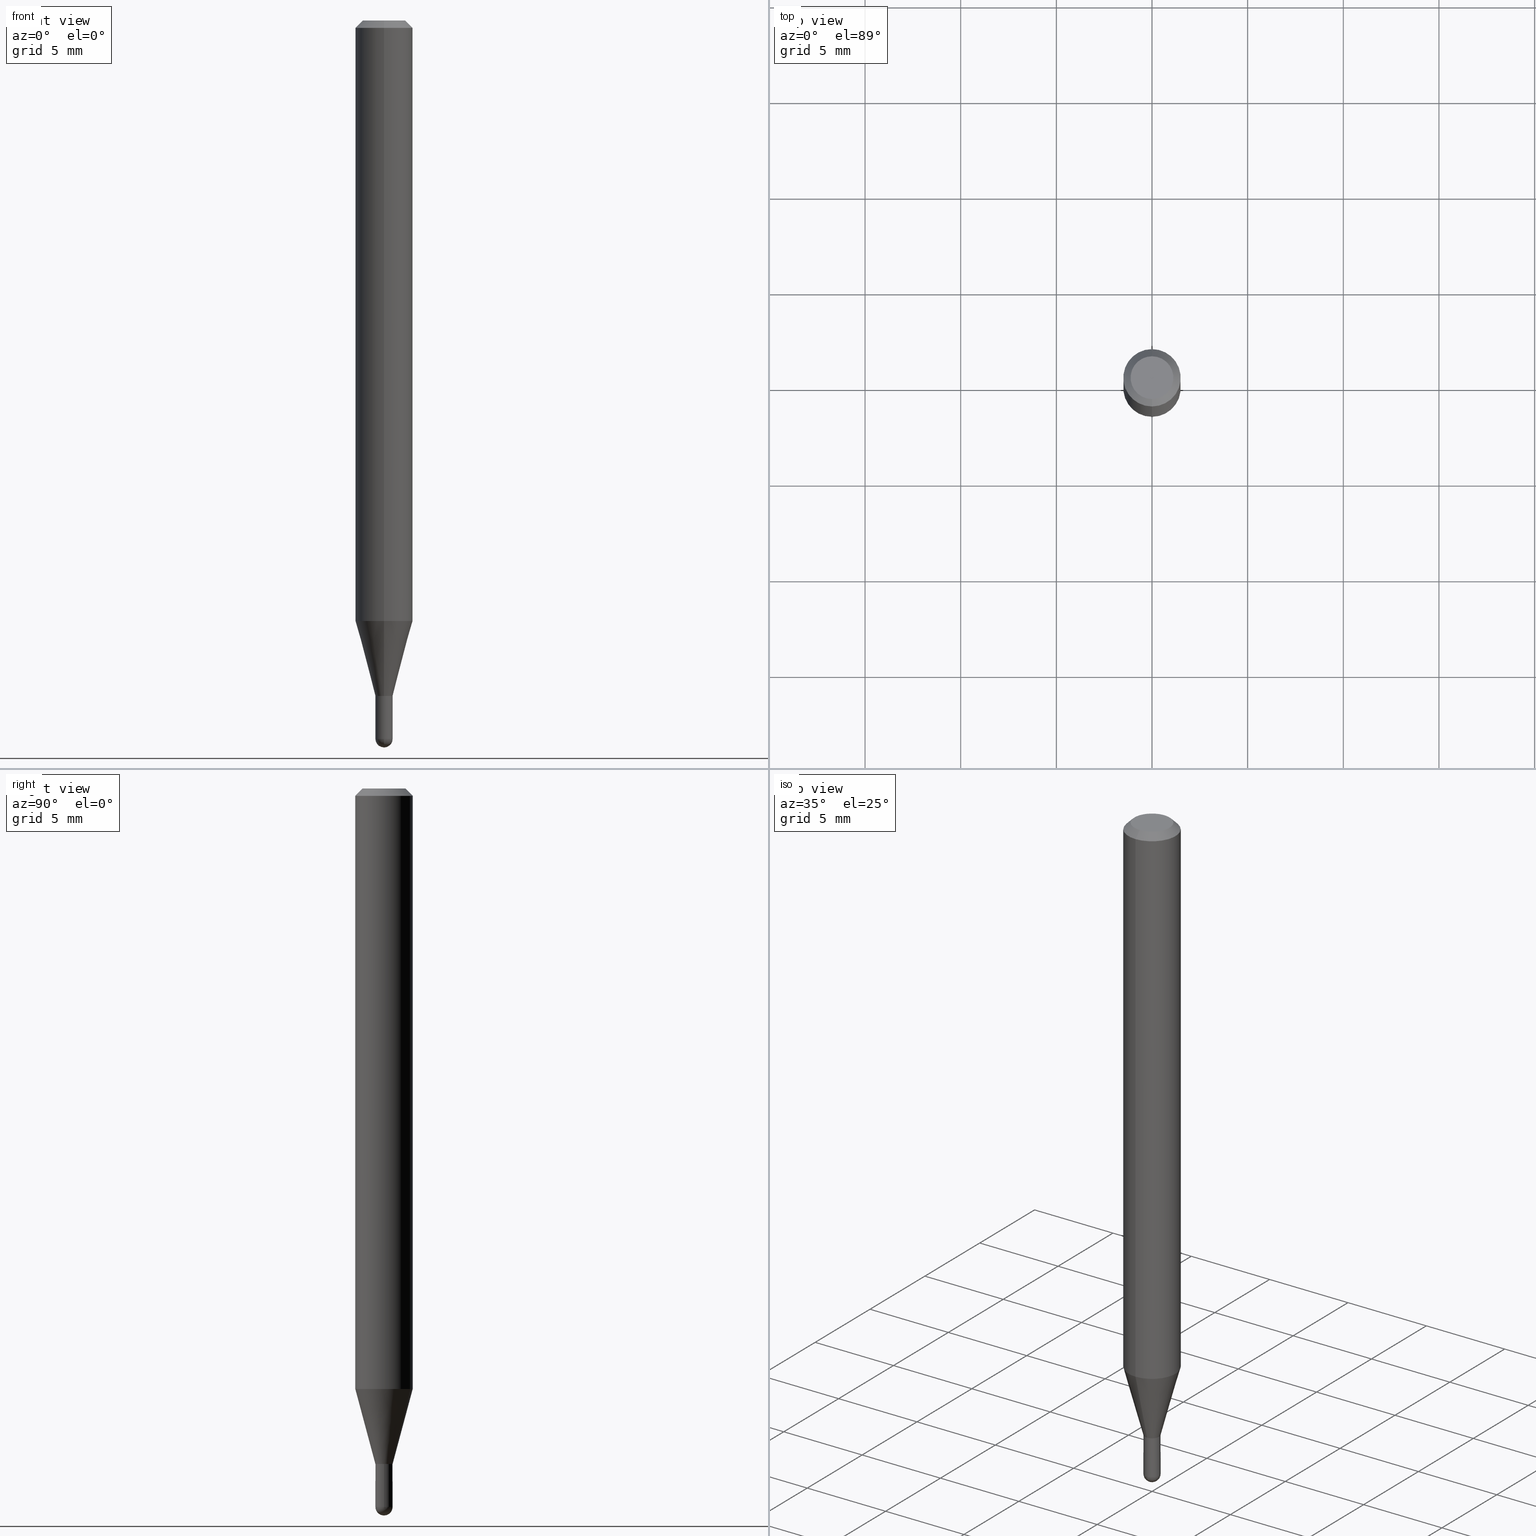
[diagram: canonical four-view strip — front | top / right | iso, engineering-drawing reading convention]
A machine part, canonical four-view strip (front | top / right | iso — engineering-drawing reading convention). The complete STEP part file that produces these views, byte-faithful:
ISO-10303-21;
HEADER;
FILE_DESCRIPTION (( 'STEP AP203' ),
    '1' );
FILE_NAME ('05016.STEP',
    '2024-03-08T20:47:58',
    ( '' ),
    ( '' ),
    'SwSTEP 2.0',
    'SolidWorks 2023',
    '' );
FILE_SCHEMA (( 'CONFIG_CONTROL_DESIGN' ));
ENDSEC;

DATA;
#1 = AXIS2_PLACEMENT_3D ( 'NONE', #418, #31, #149 ) ;
#2 = EDGE_LOOP ( 'NONE', ( #88, #100, #445, #374, #262 ) ) ;
#3 = VECTOR ( 'NONE', #470, 39.37007874015748854 ) ;
#4 = APPROVAL ( #497, 'UNSPECIFIED' ) ;
#5 = ORIENTED_EDGE ( 'NONE', *, *, #276, .F. ) ;
#6 = EDGE_CURVE ( 'NONE', #43, #257, #79, .T. ) ;
#7 = ORIENTED_EDGE ( 'NONE', *, *, #500, .T. ) ;
#8 = DIRECTION ( 'NONE',  ( -6.982962677686265922E-15, -1.000000000000000000, 3.491520277055182964E-15 ) ) ;
#9 = AXIS2_PLACEMENT_3D ( 'NONE', #491, #163, #333 ) ;
#10 = ORGANIZATION ( 'UNSPECIFIED', 'UNSPECIFIED', '' ) ;
#11 = EDGE_LOOP ( 'NONE', ( #175, #323, #90, #370 ) ) ;
#12 = CYLINDRICAL_SURFACE ( 'NONE', #437, 0.05904999999999999832 ) ;
#13 = ORIENTED_EDGE ( 'NONE', *, *, #394, .F. ) ;
#14 = CARTESIAN_POINT ( 'NONE',  ( 3.075995059520799729E-16, 0.04404999999999999888, -1.940516892611363191E-16 ) ) ;
#15 = EDGE_LOOP ( 'NONE', ( #397, #125, #244, #48 ) ) ;
#16 = DIRECTION ( 'NONE',  ( -6.982962677686265922E-15, -1.000000000000000000, 3.491520277055182964E-15 ) ) ;
#17 = EDGE_CURVE ( 'NONE', #511, #47, #126, .T. ) ;
#18 = CIRCLE ( 'NONE', #111, 0.01769999999999996229 ) ;
#19 = CONICAL_SURFACE ( 'NONE', #45, 0.05904999999999999832, 0.7853981633974483900 ) ;
#20 = APPLICATION_PROTOCOL_DEFINITION ( 'international standard', 'config_control_design', 1994, #435 ) ;
#21 = EDGE_LOOP ( 'NONE', ( #332, #220 ) ) ;
#22 = CARTESIAN_POINT ( 'NONE',  ( 3.613867438732258516E-29, -5.163973636180197751E-15, -1.478399999999999936 ) ) ;
#23 = COORDINATED_UNIVERSAL_TIME_OFFSET ( 5, 0, .BEHIND. ) ;
#24 = DIRECTION ( 'NONE',  ( 6.982962677686265922E-15, 1.000000000000000000, -3.505890868245046092E-15 ) ) ;
#25 = FACE_OUTER_BOUND ( 'NONE', #395, .T. ) ;
#26 = DATE_AND_TIME ( #227, #81 ) ;
#27 = CARTESIAN_POINT ( 'NONE',  ( 3.399408390091603285E-29, -4.853562337134410202E-15, -1.390100000000000113 ) ) ;
#28 =( NAMED_UNIT ( * ) PLANE_ANGLE_UNIT ( ) SI_UNIT ( $, .RADIAN. ) );
#29 = AXIS2_PLACEMENT_3D ( 'NONE', #355, #154, #78 ) ;
#30 = PERSON_AND_ORGANIZATION_ROLE ( 'design_owner' ) ;
#31 = DIRECTION ( 'NONE',  ( -2.445468806185136597E-29, 3.491481338843145583E-15, 1.000000000000000000 ) ) ;
#32 = CARTESIAN_POINT ( 'NONE',  ( 3.613867438732258516E-29, -5.163973636180197751E-15, -1.478399999999999936 ) ) ;
#33 = PERSON_AND_ORGANIZATION ( #477, #10 ) ;
#34 = DIRECTION ( 'NONE',  ( -2.445441615776996841E-29, 3.491520277055183358E-15, 1.000000000000000000 ) ) ;
#35 = DIRECTION ( 'NONE',  ( -2.445441615776996841E-29, 3.491520277055183358E-15, 1.000000000000000000 ) ) ;
#36 = EDGE_CURVE ( 'NONE', #482, #59, #238, .T. ) ;
#37 = DIRECTION ( 'NONE',  ( 1.000000000000000000, -6.982962677686271444E-15, 0.000000000000000000 ) ) ;
#38 = DIRECTION ( 'NONE',  ( 1.839019923739649619E-15, 0.2588190451025318972, 0.9659258262890650926 ) ) ;
#39 = CIRCLE ( 'NONE', #9, 0.01770000000000019821 ) ;
#40 = LINE ( 'NONE', #510, #3 ) ;
#41 = CC_DESIGN_APPROVAL ( #352, ( #177 ) ) ;
#42 = EDGE_CURVE ( 'NONE', #511, #205, #340, .T. ) ;
#43 = VERTEX_POINT ( 'NONE', #151 ) ;
#44 = CIRCLE ( 'NONE', #110, 0.01769999999999965004 ) ;
#45 = AXIS2_PLACEMENT_3D ( 'NONE', #253, #58, #371 ) ;
#46 = APPROVAL_PERSON_ORGANIZATION ( #309, #4, #382 ) ;
#47 = VERTEX_POINT ( 'NONE', #422 ) ;
#48 = ORIENTED_EDGE ( 'NONE', *, *, #190, .F. ) ;
#49 = CARTESIAN_POINT ( 'NONE',  ( -4.123439461173739834E-16, -0.05904999999999999832, 2.061742723601085597E-16 ) ) ;
#50 = ORIENTED_EDGE ( 'NONE', *, *, #357, .T. ) ;
#51 = LINE ( 'NONE', #131, #285 ) ;
#52 = AXIS2_PLACEMENT_3D ( 'NONE', #348, #143, #431 ) ;
#53 = PRODUCT_DEFINITION_FORMATION_WITH_SPECIFIED_SOURCE ( 'ANY', '', #474, .NOT_KNOWN. ) ;
#54 = EDGE_LOOP ( 'NONE', ( #360, #119, #167, #95 ) ) ;
#55 = FACE_OUTER_BOUND ( 'NONE', #21, .T. ) ;
#56 = ORIENTED_EDGE ( 'NONE', *, *, #291, .T. ) ;
#57 = EDGE_CURVE ( 'NONE', #59, #139, #192, .T. ) ;
#58 = DIRECTION ( 'NONE',  ( 2.445441615776996841E-29, -3.491520277055183358E-15, -1.000000000000000000 ) ) ;
#59 = VERTEX_POINT ( 'NONE', #430 ) ;
#60 = CARTESIAN_POINT ( 'NONE',  ( 1.257660642295371691E-16, 0.01769999999999992413, -6.179990890387647040E-17 ) ) ;
#61 = AXIS2_PLACEMENT_3D ( 'NONE', #468, #226, #182 ) ;
#62 = COORDINATED_UNIVERSAL_TIME_OFFSET ( 5, 0, .BEHIND. ) ;
#63 = CARTESIAN_POINT ( 'NONE',  ( 3.399408390091603285E-29, -4.853562337134410202E-15, -1.390100000000000113 ) ) ;
#64 = DIRECTION ( 'NONE',  ( -1.000000000000000000, 6.982962677686265922E-15, -4.883557194083112340E-29 ) ) ;
#65 = DATE_AND_TIME ( #349, #241 ) ;
#66 = DIRECTION ( 'NONE',  ( 1.000000000000000000, -6.982962677686265922E-15, 4.876176775795935232E-29 ) ) ;
#67 = CARTESIAN_POINT ( 'NONE',  ( 3.615381083064105737E-29, -5.161806011345705278E-15, -1.478399999999999714 ) ) ;
#68 = APPROVAL_DATE_TIME ( #504, #416 ) ;
#69 = CARTESIAN_POINT ( 'NONE',  ( -1.201069580561697893E-16, -0.01720000000000485377, -1.389799999999999702 ) ) ;
#70 = AXIS2_PLACEMENT_3D ( 'NONE', #14, #290, #409 ) ;
#71 = CALENDAR_DATE ( 2024, 8, 3 ) ;
#72 = DIRECTION ( 'NONE',  ( -6.982962677686266711E-15, -1.000000000000000000, 0.000000000000000000 ) ) ;
#73 = LINE ( 'NONE', #495, #80 ) ;
#74 = PERSON_AND_ORGANIZATION_ROLE ( 'creator' ) ;
#75 = CARTESIAN_POINT ( 'NONE',  ( 1.968591312333160801E-45, -2.810689259519290324E-31, -8.050044211371100682E-17 ) ) ;
#76 = DIRECTION ( 'NONE',  ( -6.982962677686265922E-15, -1.000000000000000000, 0.000000000000000000 ) ) ;
#77 = ADVANCED_FACE ( 'NONE', ( #493 ), #261, .T. ) ;
#78 = DIRECTION ( 'NONE',  ( -1.000000000000000000, 6.982962677686265922E-15, -4.876176775795935793E-29 ) ) ;
#79 = CIRCLE ( 'NONE', #299, 0.04404999999999999888 ) ;
#80 = VECTOR ( 'NONE', #38, 39.37007874015748854 ) ;
#81 = LOCAL_TIME ( 15, 47, 58.00000000000000000, #62 ) ;
#82 = EDGE_CURVE ( 'NONE', #289, #407, #324, .T. ) ;
#83 = ORIENTED_EDGE ( 'NONE', *, *, #239, .T. ) ;
#84 = ORIENTED_EDGE ( 'NONE', *, *, #132, .T. ) ;
#85 = EDGE_CURVE ( 'NONE', #407, #254, #141, .T. ) ;
#86 = ORIENTED_EDGE ( 'NONE', *, *, #57, .T. ) ;
#87 = CC_DESIGN_PERSON_AND_ORGANIZATION_ASSIGNMENT ( #225, #178, ( #373 ) ) ;
#88 = ORIENTED_EDGE ( 'NONE', *, *, #190, .T. ) ;
#89 = CARTESIAN_POINT ( 'NONE',  ( 2.726707748479693555E-16, 0.01769999999999479628, -1.390100000000000113 ) ) ;
#90 = ORIENTED_EDGE ( 'NONE', *, *, #447, .T. ) ;
#91 = CARTESIAN_POINT ( 'NONE',  ( 0.000000000000000000, 0.000000000000000000, 0.000000000000000000 ) ) ;
#92 = AXIS2_PLACEMENT_3D ( 'NONE', #224, #377, #24 ) ;
#93 = CC_DESIGN_SECURITY_CLASSIFICATION ( #373, ( #53 ) ) ;
#94 = EDGE_CURVE ( 'NONE', #257, #43, #383, .T. ) ;
#95 = ORIENTED_EDGE ( 'NONE', *, *, #291, .F. ) ;
#96 = FACE_OUTER_BOUND ( 'NONE', #287, .T. ) ;
#97 = DIRECTION ( 'NONE',  ( -6.982962677686265133E-15, -1.000000000000000000, 3.491520277055183358E-15 ) ) ;
#98 = CARTESIAN_POINT ( 'NONE',  ( 3.022027104128707959E-29, -4.314749877405350668E-15, -1.235779699107030671 ) ) ;
#99 = DATE_TIME_ROLE ( 'creation_date' ) ;
#100 = ORIENTED_EDGE ( 'NONE', *, *, #494, .T. ) ;
#101 = CARTESIAN_POINT ( 'NONE',  ( 1.239897073901721447E-16, 0.01719999999999514625, -1.389799999999999702 ) ) ;
#102 = AXIS2_PLACEMENT_3D ( 'NONE', #27, #347, #146 ) ;
#103 = COORDINATED_UNIVERSAL_TIME_OFFSET ( 5, 0, .BEHIND. ) ;
#104 = DIRECTION ( 'NONE',  ( -6.982962677686266711E-15, -1.000000000000000000, 0.000000000000000000 ) ) ;
#105 = DIRECTION ( 'NONE',  ( -2.445468806185136597E-29, 3.491481338843145583E-15, 1.000000000000000000 ) ) ;
#106 = CARTESIAN_POINT ( 'NONE',  ( -1.235984393950104545E-16, -0.01770000000000450380, -1.390100000000000113 ) ) ;
#107 = COORDINATED_UNIVERSAL_TIME_OFFSET ( 5, 0, .BEHIND. ) ;
#108 = DIRECTION ( 'NONE',  ( -2.445441615776996841E-29, 3.491520277055183358E-15, 1.000000000000000000 ) ) ;
#109 = CARTESIAN_POINT ( 'NONE',  ( 0.000000000000000000, 0.000000000000000000, 0.000000000000000000 ) ) ;
#110 = AXIS2_PLACEMENT_3D ( 'NONE', #235, #188, #144 ) ;
#111 = AXIS2_PLACEMENT_3D ( 'NONE', #22, #129, #288 ) ;
#112 =( GEOMETRIC_REPRESENTATION_CONTEXT ( 3 ) GLOBAL_UNCERTAINTY_ASSIGNED_CONTEXT ( ( #328 ) ) GLOBAL_UNIT_ASSIGNED_CONTEXT ( ( #378, #28, #318 ) ) REPRESENTATION_CONTEXT ( 'NONE', 'WORKASPACE' ) );
#113 = ADVANCED_FACE ( 'NONE', ( #228 ), #443, .T. ) ;
#114 = APPROVAL_DATE_TIME ( #187, #352 ) ;
#115 = CARTESIAN_POINT ( 'NONE',  ( 3.398674757606869525E-29, -4.852514881051293182E-15, -1.389799999999999702 ) ) ;
#116 = DIRECTION ( 'NONE',  ( -6.982962677686266711E-15, -1.000000000000000000, 0.000000000000000000 ) ) ;
#117 = DIRECTION ( 'NONE',  ( -2.445468806185136877E-29, 3.491481338843145188E-15, 1.000000000000000000 ) ) ;
#118 = CARTESIAN_POINT ( 'NONE',  ( 0.01770000000000000046, -4.976059204119250988E-15, -1.389799999999999924 ) ) ;
#119 = ORIENTED_EDGE ( 'NONE', *, *, #82, .T. ) ;
#120 = EDGE_CURVE ( 'NONE', #205, #297, #230, .T. ) ;
#121 = AXIS2_PLACEMENT_3D ( 'NONE', #249, #405, #135 ) ;
#122 = ORIENTED_EDGE ( 'NONE', *, *, #242, .T. ) ;
#123 = ORIENTED_EDGE ( 'NONE', *, *, #500, .F. ) ;
#124 = EDGE_CURVE ( 'NONE', #321, #414, #44, .T. ) ;
#125 = ORIENTED_EDGE ( 'NONE', *, *, #394, .T. ) ;
#126 = CIRCLE ( 'NONE', #200, 0.01770000000000000046 ) ;
#127 = VECTOR ( 'NONE', #222, 39.37007874015748143 ) ;
#128 = EDGE_LOOP ( 'NONE', ( #450, #207, #123, #473 ) ) ;
#129 = DIRECTION ( 'NONE',  ( 1.000000000000000000, -7.105427357601001070E-15, 4.926315508542082329E-29 ) ) ;
#130 = ORIENTED_EDGE ( 'NONE', *, *, #412, .T. ) ;
#131 = CARTESIAN_POINT ( 'NONE',  ( -4.051124067684085231E-16, -0.05905000000000005383, -0.01499999999999987454 ) ) ;
#132 = EDGE_CURVE ( 'NONE', #414, #321, #170, .T. ) ;
#133 = ORIENTED_EDGE ( 'NONE', *, *, #124, .F. ) ;
#134 = CLOSED_SHELL ( 'NONE', ( #389, #436, #183, #218, #165 ) ) ;
#135 = DIRECTION ( 'NONE',  ( -6.982962677686266711E-15, -1.000000000000000000, 0.000000000000000000 ) ) ;
#136 = AXIS2_PLACEMENT_3D ( 'NONE', #197, #237, #316 ) ;
#137 = ORIENTED_EDGE ( 'NONE', *, *, #308, .F. ) ;
#138 = DIRECTION ( 'NONE',  ( -2.445441615776996841E-29, 3.491520277055183358E-15, 1.000000000000000000 ) ) ;
#139 = VERTEX_POINT ( 'NONE', #454 ) ;
#140 = DIRECTION ( 'NONE',  ( -6.982962677686265922E-15, -1.000000000000000000, 0.000000000000000000 ) ) ;
#141 = LINE ( 'NONE', #69, #210 ) ;
#142 = PRODUCT_RELATED_PRODUCT_CATEGORY ( 'detail', '', ( #474 ) ) ;
#143 = DIRECTION ( 'NONE',  ( -2.445468806185136597E-29, 3.491481338843145583E-15, 1.000000000000000000 ) ) ;
#144 = DIRECTION ( 'NONE',  ( -6.982962677686265133E-15, -1.000000000000000000, 0.000000000000000000 ) ) ;
#145 = LINE ( 'NONE', #415, #172 ) ;
#146 = DIRECTION ( 'NONE',  ( -6.982962677686265133E-15, -1.000000000000000000, 0.000000000000000000 ) ) ;
#147 = DIRECTION ( 'NONE',  ( -2.445441615776996841E-29, 3.491520277055183358E-15, 1.000000000000000000 ) ) ;
#148 = SECURITY_CLASSIFICATION_LEVEL ( 'unclassified' ) ;
#149 = DIRECTION ( 'NONE',  ( 1.000000000000000000, -6.982962677686271444E-15, 0.000000000000000000 ) ) ;
#150 = AXIS2_PLACEMENT_3D ( 'NONE', #67, #229, #461 ) ;
#151 = CARTESIAN_POINT ( 'NONE',  ( 3.599717260347271507E-16, 0.04404999999999999888, -2.343019103179918348E-16 ) ) ;
#152 = ADVANCED_FACE ( 'NONE', ( #350 ), #428, .T. ) ;
#153 = FACE_OUTER_BOUND ( 'NONE', #54, .T. ) ;
#154 = DIRECTION ( 'NONE',  ( 2.438088387897960049E-29, -3.491481338843145188E-15, -1.000000000000000000 ) ) ;
#155 = CC_DESIGN_PERSON_AND_ORGANIZATION_ASSIGNMENT ( #459, #413, ( #53 ) ) ;
#156 = ORIENTED_EDGE ( 'NONE', *, *, #494, .F. ) ;
#157 = AXIS2_PLACEMENT_3D ( 'NONE', #75, #34, #278 ) ;
#158 = CIRCLE ( 'NONE', #444, 0.05904999999999999832 ) ;
#159 = ADVANCED_FACE ( 'NONE', ( #194 ), #160, .T. ) ;
#160 = CONICAL_SURFACE ( 'NONE', #92, 0.05904999999999999832, 0.7853981633974483900 ) ;
#161 = ADVANCED_FACE ( 'NONE', ( #310 ), #456, .F. ) ;
#162 = EDGE_LOOP ( 'NONE', ( #212, #86, #214, #198 ) ) ;
#163 = DIRECTION ( 'NONE',  ( -2.445441615776996841E-29, 3.491520277055183358E-15, 1.000000000000000000 ) ) ;
#164 = ORIENTED_EDGE ( 'NONE', *, *, #204, .T. ) ;
#165 = ADVANCED_FACE ( 'NONE', ( #179 ), #465, .T. ) ;
#166 = CARTESIAN_POINT ( 'NONE',  ( 3.613867438732258516E-29, -5.163973636180197751E-15, -1.478399999999999936 ) ) ;
#167 = ORIENTED_EDGE ( 'NONE', *, *, #85, .T. ) ;
#168 = FACE_OUTER_BOUND ( 'NONE', #11, .T. ) ;
#169 = ORIENTED_EDGE ( 'NONE', *, *, #36, .F. ) ;
#170 = CIRCLE ( 'NONE', #464, 0.01769999999999965004 ) ;
#171 = FACE_OUTER_BOUND ( 'NONE', #2, .T. ) ;
#172 = VECTOR ( 'NONE', #274, 39.37007874015748143 ) ;
#173 = EDGE_CURVE ( 'NONE', #139, #280, #245, .T. ) ;
#174 = MECHANICAL_CONTEXT ( 'NONE', #435, 'mechanical' ) ;
#175 = ORIENTED_EDGE ( 'NONE', *, *, #357, .F. ) ;
#176 = SPHERICAL_SURFACE ( 'NONE', #479, 0.01769999999999996229 ) ;
#177 = PRODUCT_DEFINITION ( 'UNKNOWN', '', #53, #271 ) ;
#178 = PERSON_AND_ORGANIZATION_ROLE ( 'classification_officer' ) ;
#179 = FACE_OUTER_BOUND ( 'NONE', #203, .T. ) ;
#180 = DIRECTION ( 'NONE',  ( -6.982962677686265922E-15, -1.000000000000000000, 3.491520277055182964E-15 ) ) ;
#181 = APPROVAL_STATUS ( 'not_yet_approved' ) ;
#182 = DIRECTION ( 'NONE',  ( -6.982962677686265922E-15, -1.000000000000000000, 3.505890868245046092E-15 ) ) ;
#183 = ADVANCED_FACE ( 'NONE', ( #498 ), #432, .F. ) ;
#184 = VECTOR ( 'NONE', #117, 39.37007874015748143 ) ;
#185 = AXIS2_PLACEMENT_3D ( 'NONE', #32, #388, #76 ) ;
#186 = CC_DESIGN_APPROVAL ( #4, ( #373 ) ) ;
#187 = DATE_AND_TIME ( #425, #283 ) ;
#188 = DIRECTION ( 'NONE',  ( -2.445441615776996841E-29, 3.491520277055183358E-15, 1.000000000000000000 ) ) ;
#189 = DIRECTION ( 'NONE',  ( -2.445468806185136597E-29, 3.491481338843145583E-15, 1.000000000000000000 ) ) ;
#190 = EDGE_CURVE ( 'NONE', #47, #337, #201, .T. ) ;
#191 = APPLICATION_PROTOCOL_DEFINITION ( 'international standard', 'config_control_design', 1994, #265 ) ;
#192 = LINE ( 'NONE', #302, #196 ) ;
#193 = CARTESIAN_POINT ( 'NONE',  ( -0.01770000000000000046, 1.257660642295377361E-16, -8.706515109751182648E-31 ) ) ;
#194 = FACE_OUTER_BOUND ( 'NONE', #471, .T. ) ;
#195 = SPHERICAL_SURFACE ( 'NONE', #185, 0.01769999999999996229 ) ;
#196 = VECTOR ( 'NONE', #275, 39.37007874015748143 ) ;
#197 = CARTESIAN_POINT ( 'NONE',  ( 3.615381083064105737E-29, -5.161806011345705278E-15, -1.478399999999999714 ) ) ;
#198 = ORIENTED_EDGE ( 'NONE', *, *, #239, .F. ) ;
#199 = VERTEX_POINT ( 'NONE', #393 ) ;
#200 = AXIS2_PLACEMENT_3D ( 'NONE', #343, #105, #37 ) ;
#201 = CIRCLE ( 'NONE', #136, 0.01770000000000000046 ) ;
#202 = CC_DESIGN_APPROVAL ( #416, ( #53 ) ) ;
#203 = EDGE_LOOP ( 'NONE', ( #156, #130, #408, #441, #326 ) ) ;
#204 = EDGE_CURVE ( 'NONE', #414, #482, #40, .T. ) ;
#205 = VERTEX_POINT ( 'NONE', #118 ) ;
#206 = DIRECTION ( 'NONE',  ( 1.000000000000000000, 0.000000000000000000, 0.000000000000000000 ) ) ;
#207 = ORIENTED_EDGE ( 'NONE', *, *, #209, .T. ) ;
#208 = DIRECTION ( 'NONE',  ( -2.445441615776996841E-29, 3.491520277055183358E-15, 1.000000000000000000 ) ) ;
#209 = EDGE_CURVE ( 'NONE', #289, #199, #449, .T. ) ;
#210 = VECTOR ( 'NONE', #300, 39.37007874015748854 ) ;
#211 = AXIS2_PLACEMENT_3D ( 'NONE', #270, #64, #311 ) ;
#212 = ORIENTED_EDGE ( 'NONE', *, *, #36, .T. ) ;
#213 = DIRECTION ( 'NONE',  ( -4.851104656540964275E-15, -0.7071067811865500152, -0.7071067811865450192 ) ) ;
#214 = ORIENTED_EDGE ( 'NONE', *, *, #476, .F. ) ;
#215 = FACE_OUTER_BOUND ( 'NONE', #15, .T. ) ;
#216 = EDGE_LOOP ( 'NONE', ( #329, #248 ) ) ;
#217 = FACE_OUTER_BOUND ( 'NONE', #162, .T. ) ;
#218 = ADVANCED_FACE ( 'NONE', ( #215 ), #176, .T. ) ;
#219 = DIRECTION ( 'NONE',  ( 0.000000000000000000, 0.000000000000000000, 1.000000000000000000 ) ) ;
#220 = ORIENTED_EDGE ( 'NONE', *, *, #94, .T. ) ;
#221 = AXIS2_PLACEMENT_3D ( 'NONE', #336, #138, #8 ) ;
#222 = DIRECTION ( 'NONE',  ( -2.445441615776996841E-29, 3.491520277055183358E-15, 1.000000000000000000 ) ) ;
#223 = CC_DESIGN_PERSON_AND_ORGANIZATION_ASSIGNMENT ( #272, #74, ( #177 ) ) ;
#224 = CARTESIAN_POINT ( 'NONE',  ( 3.668162423665515107E-31, -5.237280415582803362E-17, -0.01500000000000008098 ) ) ;
#225 = PERSON_AND_ORGANIZATION ( #477, #10 ) ;
#226 = DIRECTION ( 'NONE',  ( -2.445441615776996841E-29, 3.491520277055183358E-15, 1.000000000000000000 ) ) ;
#227 = CALENDAR_DATE ( 2024, 8, 3 ) ;
#228 = FACE_OUTER_BOUND ( 'NONE', #284, .T. ) ;
#229 = DIRECTION ( 'NONE',  ( -2.445468806185136597E-29, 3.491481338843145583E-15, 1.000000000000000000 ) ) ;
#230 = CIRCLE ( 'NONE', #1, 0.01770000000000000046 ) ;
#231 = VECTOR ( 'NONE', #351, 39.37007874015748143 ) ;
#232 = PERSON_AND_ORGANIZATION_ROLE ( 'design_supplier' ) ;
#233 = CARTESIAN_POINT ( 'NONE',  ( 0.000000000000000000, 0.000000000000000000, 0.000000000000000000 ) ) ;
#234 = CARTESIAN_POINT ( 'NONE',  ( 0.000000000000000000, 0.000000000000000000, 0.000000000000000000 ) ) ;
#235 = CARTESIAN_POINT ( 'NONE',  ( 3.399408390091603285E-29, -4.853562337134410202E-15, -1.390100000000000113 ) ) ;
#236 = DIRECTION ( 'NONE',  ( -2.445441615776996841E-29, 3.491520277055183358E-15, 1.000000000000000000 ) ) ;
#237 = DIRECTION ( 'NONE',  ( -2.445468806185136597E-29, 3.491481338843145583E-15, 1.000000000000000000 ) ) ;
#238 = CIRCLE ( 'NONE', #462, 0.05904999999999999832 ) ;
#239 = EDGE_CURVE ( 'NONE', #482, #280, #411, .T. ) ;
#240 = AXIS2_PLACEMENT_3D ( 'NONE', #98, #259, #330 ) ;
#241 = LOCAL_TIME ( 15, 47, 58.00000000000000000, #492 ) ;
#242 = EDGE_CURVE ( 'NONE', #321, #199, #446, .T. ) ;
#243 = ORIENTED_EDGE ( 'NONE', *, *, #322, .F. ) ;
#244 = ORIENTED_EDGE ( 'NONE', *, *, #412, .F. ) ;
#245 = CIRCLE ( 'NONE', #61, 0.05904999999999999832 ) ;
#246 = EDGE_LOOP ( 'NONE', ( #133, #122, #56, #5 ) ) ;
#247 = ORIENTED_EDGE ( 'NONE', *, *, #82, .F. ) ;
#248 = ORIENTED_EDGE ( 'NONE', *, *, #420, .T. ) ;
#249 = CARTESIAN_POINT ( 'NONE',  ( 3.398674757606869525E-29, -4.852514881051293182E-15, -1.389799999999999702 ) ) ;
#250 = AXIS2_PLACEMENT_3D ( 'NONE', #266, #391, #66 ) ;
#251 = ORIENTED_EDGE ( 'NONE', *, *, #398, .T. ) ;
#252 = APPROVAL_PERSON_ORGANIZATION ( #417, #416, #305 ) ;
#253 = CARTESIAN_POINT ( 'NONE',  ( 3.668162423665515107E-31, -5.237280415582803362E-17, -0.01500000000000008098 ) ) ;
#254 = VERTEX_POINT ( 'NONE', #442 ) ;
#255 = DIRECTION ( 'NONE',  ( -2.445441615776996841E-29, 3.491520277055183358E-15, 1.000000000000000000 ) ) ;
#256 = CARTESIAN_POINT ( 'NONE',  ( 0.000000000000000000, 0.000000000000000000, 0.000000000000000000 ) ) ;
#257 = VERTEX_POINT ( 'NONE', #483 ) ;
#258 = EDGE_CURVE ( 'NONE', #402, #47, #18, .T. ) ;
#259 = DIRECTION ( 'NONE',  ( -2.445441615776996841E-29, 3.491520277055183358E-15, 1.000000000000000000 ) ) ;
#260 = DATE_TIME_ROLE ( 'classification_date' ) ;
#261 = CONICAL_SURFACE ( 'NONE', #399, 0.01720000000000000001, 0.7853981633980202659 ) ;
#262 = ORIENTED_EDGE ( 'NONE', *, *, #17, .T. ) ;
#263 = CIRCLE ( 'NONE', #240, 0.05904999999999999832 ) ;
#264 = CARTESIAN_POINT ( 'NONE',  ( 3.398674757606869525E-29, -4.852514881051293182E-15, -1.389799999999999702 ) ) ;
#265 = APPLICATION_CONTEXT ( 'configuration controlled 3d designs of mechanical parts and assemblies' ) ;
#266 = CARTESIAN_POINT ( 'NONE',  ( 0.000000000000000000, 0.000000000000000000, 0.000000000000000000 ) ) ;
#267 = CYLINDRICAL_SURFACE ( 'NONE', #282, 0.01769999999999992413 ) ;
#268 = EDGE_CURVE ( 'NONE', #59, #482, #263, .T. ) ;
#269 = CARTESIAN_POINT ( 'NONE',  ( 0.01770000000000000046, -1.235984393950469147E-16, 8.630832893158805849E-31 ) ) ;
#270 = CARTESIAN_POINT ( 'NONE',  ( 3.613867438732258516E-29, -5.163973636180197751E-15, -1.478399999999999936 ) ) ;
#271 = DESIGN_CONTEXT ( 'detailed design', #265, 'design' ) ;
#272 = PERSON_AND_ORGANIZATION ( #477, #10 ) ;
#273 = DIRECTION ( 'NONE',  ( -2.445441615776996841E-29, 3.491520277055183358E-15, 1.000000000000000000 ) ) ;
#274 = DIRECTION ( 'NONE',  ( 4.937700262164548042E-15, 0.7071067811865451302, -0.7071067811865499042 ) ) ;
#275 = DIRECTION ( 'NONE',  ( -2.445441615776996841E-29, 3.491520277055183358E-15, 1.000000000000000000 ) ) ;
#276 = EDGE_CURVE ( 'NONE', #414, #254, #376, .T. ) ;
#277 = DIRECTION ( 'NONE',  ( -6.982962677686265922E-15, -1.000000000000000000, 3.505890868245046092E-15 ) ) ;
#278 = DIRECTION ( 'NONE',  ( -6.982962677686265133E-15, -1.000000000000000000, 3.491520277055183358E-15 ) ) ;
#279 = CC_DESIGN_PERSON_AND_ORGANIZATION_ASSIGNMENT ( #33, #30, ( #474 ) ) ;
#280 = VERTEX_POINT ( 'NONE', #363 ) ;
#281 = AXIS2_PLACEMENT_3D ( 'NONE', #306, #108, #72 ) ;
#282 = AXIS2_PLACEMENT_3D ( 'NONE', #109, #147, #180 ) ;
#283 = LOCAL_TIME ( 15, 47, 58.00000000000000000, #107 ) ;
#284 = EDGE_LOOP ( 'NONE', ( #84, #251, #169, #366 ) ) ;
#285 = VECTOR ( 'NONE', #213, 39.37007874015748143 ) ;
#286 = ORIENTED_EDGE ( 'NONE', *, *, #268, .T. ) ;
#287 = EDGE_LOOP ( 'NONE', ( #484, #286, #83, #478 ) ) ;
#288 = DIRECTION ( 'NONE',  ( 7.105427357601000281E-15, 1.000000000000000000, 0.000000000000000000 ) ) ;
#289 = VERTEX_POINT ( 'NONE', #101 ) ;
#290 = DIRECTION ( 'NONE',  ( 2.445441615776996841E-29, -3.491520277055183358E-15, -1.000000000000000000 ) ) ;
#291 = EDGE_CURVE ( 'NONE', #199, #254, #39, .T. ) ;
#292 = CIRCLE ( 'NONE', #359, 0.01770000000000019821 ) ;
#293 = ORIENTED_EDGE ( 'NONE', *, *, #476, .T. ) ;
#294 = CARTESIAN_POINT ( 'NONE',  ( -0.01770000000000000046, -4.881367323805417248E-15, -1.478399999999999714 ) ) ;
#295 = VERTEX_POINT ( 'NONE', #440 ) ;
#296 = DIRECTION ( 'NONE',  ( -2.445441615776996841E-29, 3.491520277055183358E-15, 1.000000000000000000 ) ) ;
#297 = VERTEX_POINT ( 'NONE', #369 ) ;
#298 = DIRECTION ( 'NONE',  ( 1.000000000000000000, -6.982962677686271444E-15, 0.000000000000000000 ) ) ;
#299 = AXIS2_PLACEMENT_3D ( 'NONE', #448, #480, #97 ) ;
#300 = DIRECTION ( 'NONE',  ( -4.937700262167370586E-15, -0.7071067811869493624, 0.7071067811861454500 ) ) ;
#301 = PLANE ( 'NONE',  #319 ) ;
#302 = CARTESIAN_POINT ( 'NONE',  ( 4.195754854663390985E-16, 0.05904999999999999832, -2.061742723601085597E-16 ) ) ;
#303 = DIRECTION ( 'NONE',  ( -6.982962677686265922E-15, -1.000000000000000000, 0.000000000000000000 ) ) ;
#304 = MANIFOLD_SOLID_BREP ( 'Body-Move/Copy2[1]', #134 ) ;
#305 = APPROVAL_ROLE ( '' ) ;
#306 = CARTESIAN_POINT ( 'NONE',  ( 3.398674757606869525E-29, -4.852514881051293182E-15, -1.389799999999999702 ) ) ;
#307 = CARTESIAN_POINT ( 'NONE',  ( 3.398674757606870085E-29, -4.852514881051293971E-15, -1.389799999999999924 ) ) ;
#308 = EDGE_CURVE ( 'NONE', #295, #511, #325, .T. ) ;
#309 = PERSON_AND_ORGANIZATION ( #477, #10 ) ;
#310 = FACE_OUTER_BOUND ( 'NONE', #246, .T. ) ;
#311 = DIRECTION ( 'NONE',  ( -6.982962677686265922E-15, -1.000000000000000000, 0.000000000000000000 ) ) ;
#312 = AXIS2_PLACEMENT_3D ( 'NONE', #403, #485, #298 ) ;
#313 = ADVANCED_FACE ( 'NONE', ( #96 ), #452, .T. ) ;
#314 = DIRECTION ( 'NONE',  ( -2.445441615776996841E-29, 3.491520277055183358E-15, 1.000000000000000000 ) ) ;
#315 = DIMENSIONAL_EXPONENTS ( 1.000000000000000000, 0.000000000000000000, 0.000000000000000000, 0.000000000000000000, 0.000000000000000000, 0.000000000000000000, 0.000000000000000000 ) ;
#316 = DIRECTION ( 'NONE',  ( 1.000000000000000000, -6.982962677686271444E-15, 0.000000000000000000 ) ) ;
#317 = ORIENTED_EDGE ( 'NONE', *, *, #124, .T. ) ;
#318 =( NAMED_UNIT ( * ) SI_UNIT ( $, .STERADIAN. ) SOLID_ANGLE_UNIT ( ) );
#319 = AXIS2_PLACEMENT_3D ( 'NONE', #307, #236, #429 ) ;
#320 = PRODUCT_DEFINITION_SHAPE ( 'NONE', 'NONE',  #177 ) ;
#321 = VERTEX_POINT ( 'NONE', #89 ) ;
#322 = EDGE_CURVE ( 'NONE', #407, #289, #364, .T. ) ;
#323 = ORIENTED_EDGE ( 'NONE', *, *, #6, .F. ) ;
#324 = CIRCLE ( 'NONE', #281, 0.01720000000000000001 ) ;
#325 = CIRCLE ( 'NONE', #312, 0.01770000000000000046 ) ;
#326 = ORIENTED_EDGE ( 'NONE', *, *, #420, .F. ) ;
#327 = CARTESIAN_POINT ( 'NONE',  ( 1.222133505507712024E-16, 0.01719999999999514625, -1.389799999999999702 ) ) ;
#328 = UNCERTAINTY_MEASURE_WITH_UNIT (LENGTH_MEASURE( 1.000000000000000082E-05 ), #378, 'distance_accuracy_value', 'NONE');
#329 = ORIENTED_EDGE ( 'NONE', *, *, #120, .T. ) ;
#330 = DIRECTION ( 'NONE',  ( -6.982962677686265922E-15, -1.000000000000000000, 4.626330217890369336E-15 ) ) ;
#331 = ADVANCED_FACE ( 'NONE', ( #217 ), #12, .T. ) ;
#332 = ORIENTED_EDGE ( 'NONE', *, *, #6, .T. ) ;
#333 = DIRECTION ( 'NONE',  ( -6.982962677686265922E-15, -1.000000000000000000, 0.000000000000000000 ) ) ;
#334 = AXIS2_PLACEMENT_3D ( 'NONE', #63, #427, #384 ) ;
#335 = EDGE_LOOP ( 'NONE', ( #438, #317, #164, #368 ) ) ;
#336 = CARTESIAN_POINT ( 'NONE',  ( 0.000000000000000000, 0.000000000000000000, 0.000000000000000000 ) ) ;
#337 = VERTEX_POINT ( 'NONE', #294 ) ;
#338 = CARTESIAN_POINT ( 'NONE',  ( -1.235984393950463723E-16, -0.01769999999999992413, 6.179990890387647040E-17 ) ) ;
#339 = DATE_AND_TIME ( #463, #365 ) ;
#340 = LINE ( 'NONE', #269, #184 ) ;
#341 = DIRECTION ( 'NONE',  ( 1.000000000000000000, -6.982962677686265922E-15, 4.876176775795935232E-29 ) ) ;
#342 = APPROVAL_STATUS ( 'not_yet_approved' ) ;
#343 = CARTESIAN_POINT ( 'NONE',  ( 3.615381083064105737E-29, -5.161806011345705278E-15, -1.478399999999999714 ) ) ;
#344 = CONICAL_SURFACE ( 'NONE', #472, 0.01720000000000000001, 0.7853981633980202659 ) ;
#345 = CARTESIAN_POINT ( 'NONE',  ( -4.123439461173439574E-16, -0.05905000000000432819, -1.235779699107030449 ) ) ;
#346 = SHAPE_DEFINITION_REPRESENTATION ( #320, #512 ) ;
#347 = DIRECTION ( 'NONE',  ( -2.445441615776996841E-29, 3.491520277055183358E-15, 1.000000000000000000 ) ) ;
#348 = CARTESIAN_POINT ( 'NONE',  ( 3.398712546836102570E-29, -4.852460764724203802E-15, -1.389799999999999924 ) ) ;
#349 = CALENDAR_DATE ( 2024, 8, 3 ) ;
#350 = FACE_OUTER_BOUND ( 'NONE', #335, .T. ) ;
#351 = DIRECTION ( 'NONE',  ( -2.445468806185136877E-29, 3.491481338843145188E-15, 1.000000000000000000 ) ) ;
#352 = APPROVAL ( #342, 'UNSPECIFIED' ) ;
#353 = DIRECTION ( 'NONE',  ( -6.982962677686265922E-15, -1.000000000000000000, 4.626330217890369336E-15 ) ) ;
#354 = LINE ( 'NONE', #193, #231 ) ;
#355 = CARTESIAN_POINT ( 'NONE',  ( 1.235984393950808850E-16, 0.01769999999999514670, -1.389799999999999924 ) ) ;
#356 = EDGE_LOOP ( 'NONE', ( #13, #404, #410, #137 ) ) ;
#357 = EDGE_CURVE ( 'NONE', #257, #280, #51, .T. ) ;
#358 = ORIENTED_EDGE ( 'NONE', *, *, #447, .F. ) ;
#359 = AXIS2_PLACEMENT_3D ( 'NONE', #506, #392, #303 ) ;
#360 = ORIENTED_EDGE ( 'NONE', *, *, #209, .F. ) ;
#361 = ADVANCED_FACE ( 'NONE', ( #55 ), #367, .F. ) ;
#362 = ORIENTED_EDGE ( 'NONE', *, *, #276, .T. ) ;
#363 = CARTESIAN_POINT ( 'NONE',  ( -4.123439461173736383E-16, -0.05905000000000005383, -0.01499999999999987454 ) ) ;
#364 = CIRCLE ( 'NONE', #121, 0.01720000000000000001 ) ;
#365 = LOCAL_TIME ( 15, 47, 58.00000000000000000, #103 ) ;
#366 = ORIENTED_EDGE ( 'NONE', *, *, #204, .F. ) ;
#367 = PLANE ( 'NONE',  #70 ) ;
#368 = ORIENTED_EDGE ( 'NONE', *, *, #268, .F. ) ;
#369 = CARTESIAN_POINT ( 'NONE',  ( -0.01770000000000000046, -4.881367323805417248E-15, -1.389799999999999924 ) ) ;
#370 = ORIENTED_EDGE ( 'NONE', *, *, #173, .T. ) ;
#371 = DIRECTION ( 'NONE',  ( 6.982962677686265922E-15, 1.000000000000000000, -3.505890868245046092E-15 ) ) ;
#372 = CIRCLE ( 'NONE', #150, 0.01770000000000000046 ) ;
#373 = SECURITY_CLASSIFICATION ( '', '', #148 ) ;
#374 = ORIENTED_EDGE ( 'NONE', *, *, #42, .F. ) ;
#375 = AXIS2_PLACEMENT_3D ( 'NONE', #256, #219, #206 ) ;
#376 = LINE ( 'NONE', #338, #406 ) ;
#377 = DIRECTION ( 'NONE',  ( 2.445441615776996841E-29, -3.491520277055183358E-15, -1.000000000000000000 ) ) ;
#378 =( CONVERSION_BASED_UNIT ( 'INCH', #457 ) LENGTH_UNIT ( ) NAMED_UNIT ( #315 ) );
#379 = ADVANCED_FACE ( 'NONE', ( #168 ), #19, .T. ) ;
#380 = PERSON_AND_ORGANIZATION ( #477, #10 ) ;
#381 = CARTESIAN_POINT ( 'NONE',  ( 3.022027104128707959E-29, -4.314749877405350668E-15, -1.235779699107030671 ) ) ;
#382 = APPROVAL_ROLE ( '' ) ;
#383 = CIRCLE ( 'NONE', #157, 0.04404999999999999888 ) ;
#384 = DIRECTION ( 'NONE',  ( -6.982962677686265133E-15, -1.000000000000000000, 0.000000000000000000 ) ) ;
#385 = CIRCLE ( 'NONE', #52, 0.01770000000000000046 ) ;
#386 = FACE_OUTER_BOUND ( 'NONE', #356, .T. ) ;
#387 = DIRECTION ( 'NONE',  ( -6.982962677686265133E-15, -1.000000000000000000, 0.000000000000000000 ) ) ;
#388 = DIRECTION ( 'NONE',  ( 1.000000000000000000, -6.982962677686265922E-15, 4.883557194083112901E-29 ) ) ;
#389 = ADVANCED_FACE ( 'NONE', ( #171 ), #499, .T. ) ;
#390 = PERSON_AND_ORGANIZATION ( #477, #10 ) ;
#391 = DIRECTION ( 'NONE',  ( -2.445468806185136597E-29, 3.491481338843145583E-15, 1.000000000000000000 ) ) ;
#392 = DIRECTION ( 'NONE',  ( -2.445441615776996841E-29, 3.491520277055183358E-15, 1.000000000000000000 ) ) ;
#393 = CARTESIAN_POINT ( 'NONE',  ( 1.257660642295726679E-16, 0.01769999999999528895, -1.389300000000000201 ) ) ;
#394 = EDGE_CURVE ( 'NONE', #402, #295, #400, .T. ) ;
#395 = EDGE_LOOP ( 'NONE', ( #243, #247 ) ) ;
#396 = ORIENTED_EDGE ( 'NONE', *, *, #132, .F. ) ;
#397 = ORIENTED_EDGE ( 'NONE', *, *, #258, .F. ) ;
#398 = EDGE_CURVE ( 'NONE', #321, #59, #73, .T. ) ;
#399 = AXIS2_PLACEMENT_3D ( 'NONE', #115, #502, #104 ) ;
#400 = CIRCLE ( 'NONE', #211, 0.01769999999999996229 ) ;
#401 = CC_DESIGN_PERSON_AND_ORGANIZATION_ASSIGNMENT ( #380, #232, ( #53 ) ) ;
#402 = VERTEX_POINT ( 'NONE', #469 ) ;
#403 = CARTESIAN_POINT ( 'NONE',  ( 3.615381083064105737E-29, -5.161806011345705278E-15, -1.478399999999999714 ) ) ;
#404 = ORIENTED_EDGE ( 'NONE', *, *, #258, .T. ) ;
#405 = DIRECTION ( 'NONE',  ( -2.445441615776996841E-29, 3.491520277055183358E-15, 1.000000000000000000 ) ) ;
#406 = VECTOR ( 'NONE', #208, 39.37007874015748143 ) ;
#407 = VERTEX_POINT ( 'NONE', #423 ) ;
#408 = ORIENTED_EDGE ( 'NONE', *, *, #308, .T. ) ;
#409 = DIRECTION ( 'NONE',  ( 6.982962677686265922E-15, 1.000000000000000000, -3.491520277055183358E-15 ) ) ;
#410 = ORIENTED_EDGE ( 'NONE', *, *, #17, .F. ) ;
#411 = LINE ( 'NONE', #49, #127 ) ;
#412 = EDGE_CURVE ( 'NONE', #337, #295, #372, .T. ) ;
#413 = PERSON_AND_ORGANIZATION_ROLE ( 'creator' ) ;
#414 = VERTEX_POINT ( 'NONE', #106 ) ;
#415 = CARTESIAN_POINT ( 'NONE',  ( 4.123439461173743285E-16, 0.05904999999999994975, -0.01500000000000028741 ) ) ;
#416 = APPROVAL ( #181, 'UNSPECIFIED' ) ;
#417 = PERSON_AND_ORGANIZATION ( #477, #10 ) ;
#418 = CARTESIAN_POINT ( 'NONE',  ( 3.398712546836102570E-29, -4.852460764724203802E-15, -1.389799999999999924 ) ) ;
#419 = CARTESIAN_POINT ( 'NONE',  ( 0.01770000000000000046, -5.130731827430002515E-15, -1.478399999999999714 ) ) ;
#420 = EDGE_CURVE ( 'NONE', #297, #205, #385, .T. ) ;
#421 = APPROVAL_DATE_TIME ( #339, #4 ) ;
#422 = CARTESIAN_POINT ( 'NONE',  ( 1.257660642295737279E-16, 0.01769999999999481710, -1.478399999999999714 ) ) ;
#423 = CARTESIAN_POINT ( 'NONE',  ( -1.201069580561697893E-16, -0.01720000000000485377, -1.389799999999999702 ) ) ;
#424 = ADVANCED_FACE ( 'NONE', ( #467 ), #267, .F. ) ;
#425 = CALENDAR_DATE ( 2024, 8, 3 ) ;
#426 = CLOSED_SHELL ( 'NONE', ( #161, #77, #159, #331, #113, #152, #313, #379, #361, #451, #433, #424 ) ) ;
#427 = DIRECTION ( 'NONE',  ( -2.445441615776996841E-29, 3.491520277055183358E-15, 1.000000000000000000 ) ) ;
#428 = CONICAL_SURFACE ( 'NONE', #102, 0.01769999999999965004, 0.2617993877991575125 ) ;
#429 = DIRECTION ( 'NONE',  ( -6.982962677686265922E-15, -1.000000000000000000, 3.491520277055183358E-15 ) ) ;
#430 = CARTESIAN_POINT ( 'NONE',  ( 4.195754854663691246E-16, 0.05904999999999566845, -1.235779699107030893 ) ) ;
#431 = DIRECTION ( 'NONE',  ( 1.000000000000000000, -6.982962677686271444E-15, 0.000000000000000000 ) ) ;
#432 = PLANE ( 'NONE',  #29 ) ;
#433 = ADVANCED_FACE ( 'NONE', ( #153 ), #344, .T. ) ;
#434 = AXIS2_PLACEMENT_3D ( 'NONE', #233, #508, #505 ) ;
#435 = APPLICATION_CONTEXT ( 'configuration controlled 3d designs of mechanical parts and assemblies' ) ;
#436 = ADVANCED_FACE ( 'NONE', ( #386 ), #195, .T. ) ;
#437 = AXIS2_PLACEMENT_3D ( 'NONE', #91, #255, #16 ) ;
#438 = ORIENTED_EDGE ( 'NONE', *, *, #398, .F. ) ;
#439 = ORIENTED_EDGE ( 'NONE', *, *, #94, .F. ) ;
#440 = CARTESIAN_POINT ( 'NONE',  ( -1.235984393950106271E-16, -0.01770000000000514218, -1.478399999999999714 ) ) ;
#441 = ORIENTED_EDGE ( 'NONE', *, *, #42, .T. ) ;
#442 = CARTESIAN_POINT ( 'NONE',  ( -1.235984393950147439E-16, -0.01770000000000511095, -1.389300000000000201 ) ) ;
#443 = CONICAL_SURFACE ( 'NONE', #334, 0.01769999999999965004, 0.2617993877991575125 ) ;
#444 = AXIS2_PLACEMENT_3D ( 'NONE', #455, #35, #277 ) ;
#445 = ORIENTED_EDGE ( 'NONE', *, *, #120, .F. ) ;
#446 = LINE ( 'NONE', #60, #453 ) ;
#447 = EDGE_CURVE ( 'NONE', #43, #139, #145, .T. ) ;
#448 = CARTESIAN_POINT ( 'NONE',  ( 1.968591312333160801E-45, -2.810689259519290324E-31, -8.050044211371100682E-17 ) ) ;
#449 = LINE ( 'NONE', #327, #466 ) ;
#450 = ORIENTED_EDGE ( 'NONE', *, *, #322, .T. ) ;
#451 = ADVANCED_FACE ( 'NONE', ( #25 ), #301, .F. ) ;
#452 = CYLINDRICAL_SURFACE ( 'NONE', #221, 0.05904999999999999832 ) ;
#453 = VECTOR ( 'NONE', #296, 39.37007874015748143 ) ;
#454 = CARTESIAN_POINT ( 'NONE',  ( 4.195754854663695683E-16, 0.05904999999999994975, -0.01500000000000028741 ) ) ;
#455 = CARTESIAN_POINT ( 'NONE',  ( 3.668162423665515107E-31, -5.237280415582803362E-17, -0.01500000000000008098 ) ) ;
#456 = CYLINDRICAL_SURFACE ( 'NONE', #434, 0.01769999999999992413 ) ;
#457 = LENGTH_MEASURE_WITH_UNIT ( LENGTH_MEASURE( 0.02539999999999999897 ), #509 );
#458 = CC_DESIGN_DATE_AND_TIME_ASSIGNMENT ( #26, #260, ( #373 ) ) ;
#459 = PERSON_AND_ORGANIZATION ( #477, #10 ) ;
#460 = CARTESIAN_POINT ( 'NONE',  ( 3.399408390091603285E-29, -4.853562337134410202E-15, -1.390100000000000113 ) ) ;
#461 = DIRECTION ( 'NONE',  ( 1.000000000000000000, -6.982962677686271444E-15, 0.000000000000000000 ) ) ;
#462 = AXIS2_PLACEMENT_3D ( 'NONE', #381, #273, #353 ) ;
#463 = CALENDAR_DATE ( 2024, 8, 3 ) ;
#464 = AXIS2_PLACEMENT_3D ( 'NONE', #460, #314, #387 ) ;
#465 = CYLINDRICAL_SURFACE ( 'NONE', #250, 0.01770000000000000046 ) ;
#466 = VECTOR ( 'NONE', #488, 39.37007874015748854 ) ;
#467 = FACE_OUTER_BOUND ( 'NONE', #490, .T. ) ;
#468 = CARTESIAN_POINT ( 'NONE',  ( 3.668162423665515107E-31, -5.237280415582803362E-17, -0.01500000000000008098 ) ) ;
#469 = CARTESIAN_POINT ( 'NONE',  ( 3.656395414435812118E-29, -5.226856668294966003E-15, -1.496099999999999985 ) ) ;
#470 = DIRECTION ( 'NONE',  ( -1.807323732225379049E-15, -0.2588190451025252359, 0.9659258262890670910 ) ) ;
#471 = EDGE_LOOP ( 'NONE', ( #439, #50, #293, #358 ) ) ;
#472 = AXIS2_PLACEMENT_3D ( 'NONE', #264, #503, #116 ) ;
#473 = ORIENTED_EDGE ( 'NONE', *, *, #85, .F. ) ;
#474 = PRODUCT ( '05016', '05016', '', ( #174 ) ) ;
#475 = MANIFOLD_SOLID_BREP ( 'Body-Move/Copy2[2]', #426 ) ;
#476 = EDGE_CURVE ( 'NONE', #280, #139, #158, .T. ) ;
#477 = PERSON ( 'UNSPECIFIED', 'UNSPECIFIED', 'UNSPECIFIED', ('UNSPECIFIED'), ('UNSPECIFIED'), ('UNSPECIFIED') ) ;
#478 = ORIENTED_EDGE ( 'NONE', *, *, #173, .F. ) ;
#479 = AXIS2_PLACEMENT_3D ( 'NONE', #166, #481, #140 ) ;
#480 = DIRECTION ( 'NONE',  ( -2.445441615776996841E-29, 3.491520277055183358E-15, 1.000000000000000000 ) ) ;
#481 = DIRECTION ( 'NONE',  ( 1.000000000000000000, -6.982962677686265922E-15, 4.883557194083112901E-29 ) ) ;
#482 = VERTEX_POINT ( 'NONE', #345 ) ;
#483 = CARTESIAN_POINT ( 'NONE',  ( -3.536586717851222218E-16, -0.04404999999999999888, 7.330102609056979655E-17 ) ) ;
#484 = ORIENTED_EDGE ( 'NONE', *, *, #57, .F. ) ;
#485 = DIRECTION ( 'NONE',  ( -2.445468806185136597E-29, 3.491481338843145583E-15, 1.000000000000000000 ) ) ;
#486 = LOCAL_TIME ( 15, 47, 58.00000000000000000, #23 ) ;
#487 = ORIENTED_EDGE ( 'NONE', *, *, #242, .F. ) ;
#488 = DIRECTION ( 'NONE',  ( 5.024295867790934632E-15, 0.7071067811869542474, 0.7071067811861405650 ) ) ;
#489 = CC_DESIGN_DATE_AND_TIME_ASSIGNMENT ( #65, #99, ( #177 ) ) ;
#490 = EDGE_LOOP ( 'NONE', ( #487, #396, #362, #7 ) ) ;
#491 = CARTESIAN_POINT ( 'NONE',  ( 3.397452036798982166E-29, -4.850769120912767183E-15, -1.389300000000000201 ) ) ;
#492 = COORDINATED_UNIVERSAL_TIME_OFFSET ( 5, 0, .BEHIND. ) ;
#493 = FACE_OUTER_BOUND ( 'NONE', #128, .T. ) ;
#494 = EDGE_CURVE ( 'NONE', #337, #297, #354, .T. ) ;
#495 = CARTESIAN_POINT ( 'NONE',  ( 1.257660642295692413E-16, 0.01769999999999479628, -1.390100000000000113 ) ) ;
#496 = APPROVAL_PERSON_ORGANIZATION ( #390, #352, #501 ) ;
#497 = APPROVAL_STATUS ( 'not_yet_approved' ) ;
#498 = FACE_OUTER_BOUND ( 'NONE', #216, .T. ) ;
#499 = CYLINDRICAL_SURFACE ( 'NONE', #507, 0.01770000000000000046 ) ;
#500 = EDGE_CURVE ( 'NONE', #254, #199, #292, .T. ) ;
#501 = APPROVAL_ROLE ( '' ) ;
#502 = DIRECTION ( 'NONE',  ( -2.445441615776996841E-29, 3.491520277055183358E-15, 1.000000000000000000 ) ) ;
#503 = DIRECTION ( 'NONE',  ( -2.445441615776996841E-29, 3.491520277055183358E-15, 1.000000000000000000 ) ) ;
#504 = DATE_AND_TIME ( #71, #486 ) ;
#505 = DIRECTION ( 'NONE',  ( -6.982962677686265922E-15, -1.000000000000000000, 3.491520277055182964E-15 ) ) ;
#506 = CARTESIAN_POINT ( 'NONE',  ( 3.397452036798982166E-29, -4.850769120912767183E-15, -1.389300000000000201 ) ) ;
#507 = AXIS2_PLACEMENT_3D ( 'NONE', #234, #189, #341 ) ;
#508 = DIRECTION ( 'NONE',  ( -2.445441615776996841E-29, 3.491520277055183358E-15, 1.000000000000000000 ) ) ;
#509 =( LENGTH_UNIT ( ) NAMED_UNIT ( * ) SI_UNIT ( $, .METRE. ) );
#510 = CARTESIAN_POINT ( 'NONE',  ( -1.235984393950104545E-16, -0.01770000000000450380, -1.390100000000000113 ) ) ;
#511 = VERTEX_POINT ( 'NONE', #419 ) ;
#512 = ADVANCED_BREP_SHAPE_REPRESENTATION ( '05016', ( #304, #475, #375 ), #112 ) ;
ENDSEC;
END-ISO-10303-21;
